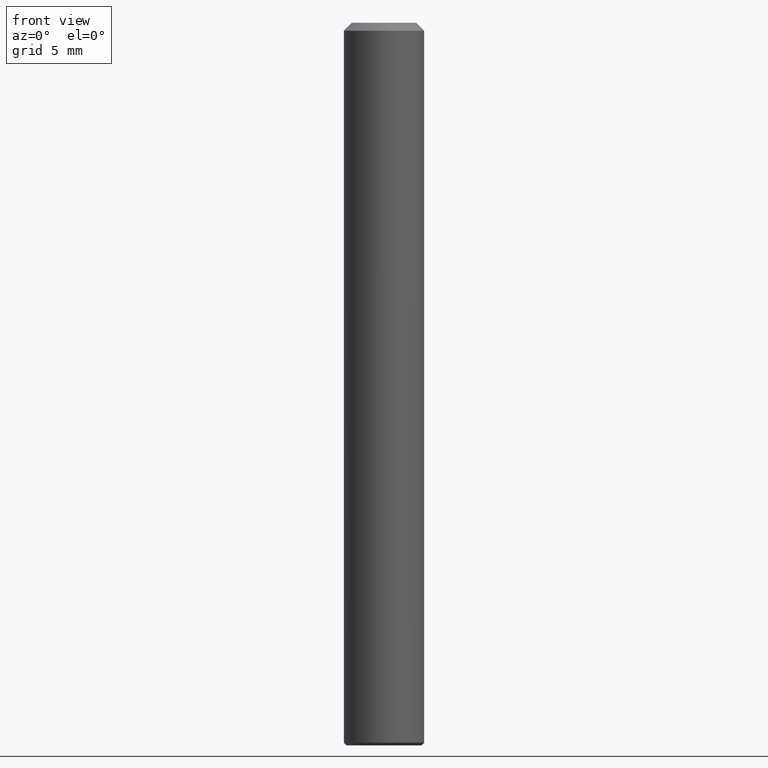
[diagram: clean part render]
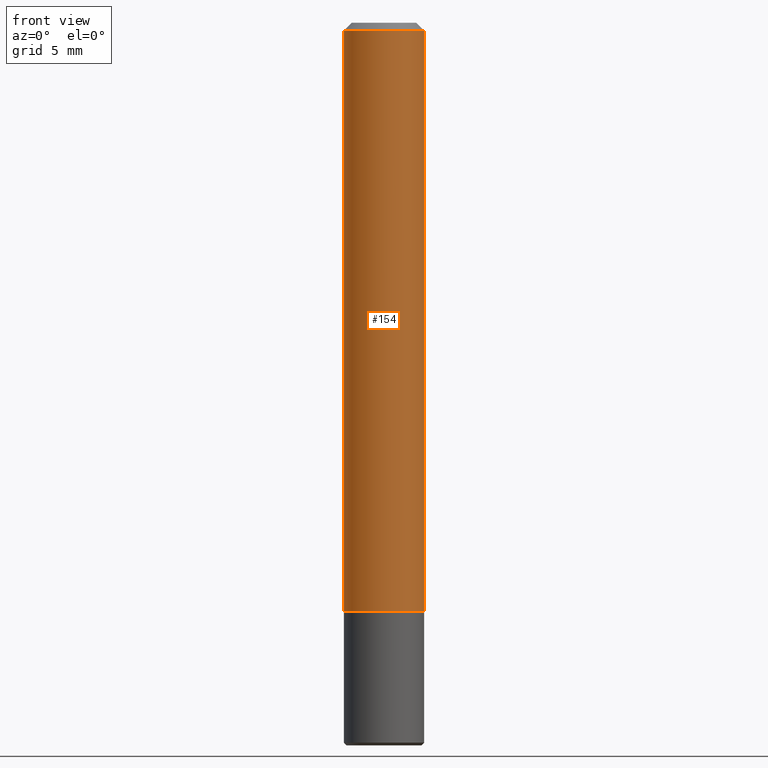
[diagram: same view with one face highlighted and labeled with its STEP entity id]
A machine part, front view. The second image highlights one B-rep face of the part: STEP entity #154.
In plain terms, the highlighted cylindrical surface (bore or boss wall) has radius 3 mm, axis along (0, 0, 1).
Its self-contained STEP definition (entity closure, byte-faithful):
#1 = VERTEX_POINT ( 'NONE', #211 ) ;
#16 = DIRECTION ( 'NONE',  ( 6.982962677686266711E-15, 0.0000000000000000000, 1.000000000000000000 ) ) ;
#18 = DIRECTION ( 'NONE',  ( 1.000000000000000000, 0.0000000000000000000, -6.975033976323412122E-15 ) ) ;
#41 = DIRECTION ( 'NONE',  ( -6.982962677686267499E-15, -0.0000000000000000000, -1.000000000000000000 ) ) ;
#68 = EDGE_LOOP ( 'NONE', ( #163 ) ) ;
#76 = EDGE_CURVE ( 'NONE', #173, #173, #143, .T. ) ;
#79 = DIRECTION ( 'NONE',  ( 6.982962677686266711E-15, 0.0000000000000000000, 1.000000000000000000 ) ) ;
#81 = CARTESIAN_POINT ( 'NONE',  ( -3.770799845950584024E-13, 0.0000000000000000000, -54.00000000000000000 ) ) ;
#86 = AXIS2_PLACEMENT_3D ( 'NONE', #81, #79, #136 ) ;
#88 = ORIENTED_EDGE ( 'NONE', *, *, #76, .F. ) ;
#94 = EDGE_LOOP ( 'NONE', ( #88 ) ) ;
#99 = FACE_OUTER_BOUND ( 'NONE', #68, .T. ) ;
#102 = AXIS2_PLACEMENT_3D ( 'NONE', #200, #41, #180 ) ;
#106 = CARTESIAN_POINT ( 'NONE',  ( -4.189777606611783692E-15, 0.0000000000000000000, -0.6000000000000033085 ) ) ;
#128 = CIRCLE ( 'NONE', #198, 3.000000000000000000 ) ;
#136 = DIRECTION ( 'NONE',  ( 1.000000000000000000, 0.0000000000000000000, -6.938893903907214178E-15 ) ) ;
#143 = CIRCLE ( 'NONE', #102, 3.000000000000006217 ) ;
#146 = EDGE_CURVE ( 'NONE', #1, #1, #128, .T. ) ;
#154 = ADVANCED_FACE ( 'NONE', ( #210, #99 ), #171, .T. ) ;
#163 = ORIENTED_EDGE ( 'NONE', *, *, #146, .F. ) ;
#171 = CYLINDRICAL_SURFACE ( 'NONE', #86, 3.000000000000006217 ) ;
#173 = VERTEX_POINT ( 'NONE', #190 ) ;
#180 = DIRECTION ( 'NONE',  ( 1.000000000000000000, 0.0000000000000000000, -6.938893903907214178E-15 ) ) ;
#190 = CARTESIAN_POINT ( 'NONE',  ( 2.999999999999698908, 0.0000000000000000000, -44.00000000000002132 ) ) ;
#198 = AXIS2_PLACEMENT_3D ( 'NONE', #106, #16, #18 ) ;
#200 = CARTESIAN_POINT ( 'NONE',  ( -3.072503578181957353E-13, 0.0000000000000000000, -44.00000000000000000 ) ) ;
#210 = FACE_OUTER_BOUND ( 'NONE', #94, .T. ) ;
#211 = CARTESIAN_POINT ( 'NONE',  ( 2.999999999999995559, 0.0000000000000000000, -0.6000000000000241807 ) ) ;